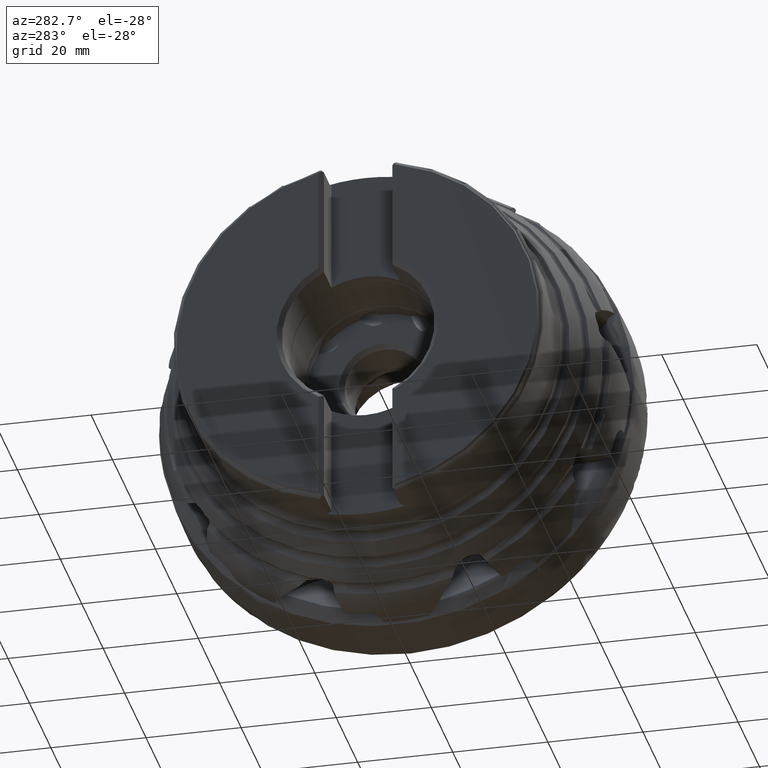
[diagram: clean part render]
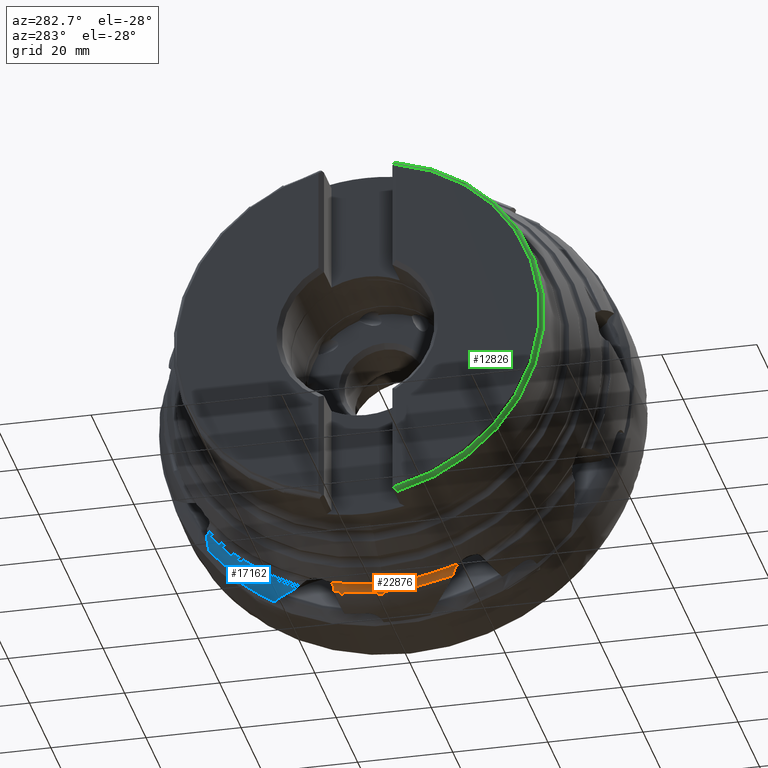
[diagram: same view with three faces highlighted in distinct colors, each labeled with its STEP entity id]
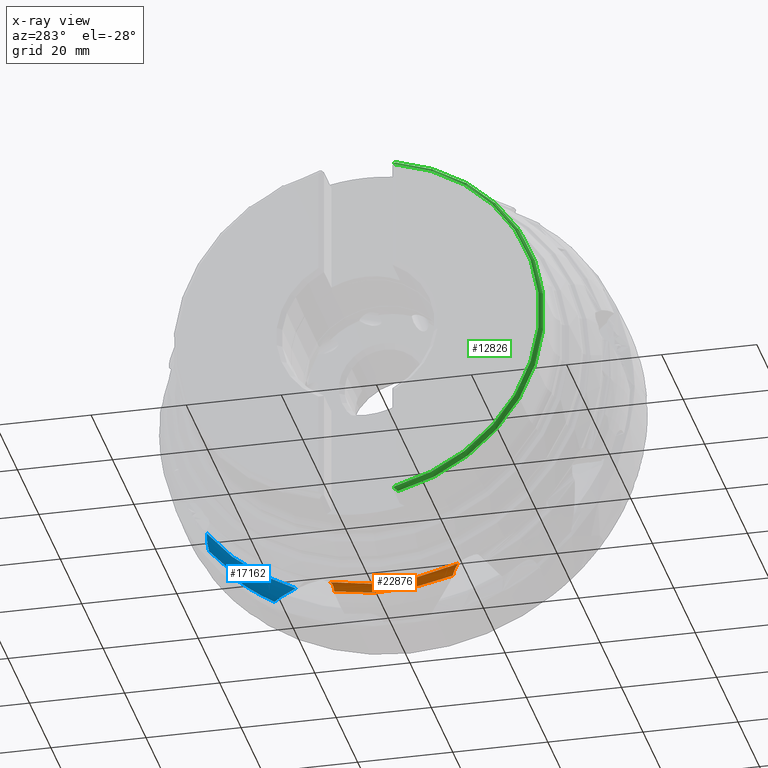
[diagram: x-ray of the same camera — body ghosted, the three highlighted faces saturated]
A machine part, auxiliary view with three faces highlighted in distinct colors.
The next image is the same camera in x-ray (body ghosted, the three faces saturated) — at least one of them is partly hidden behind the body in this view.
Their STEP definitions:

[orange] entity #22876 — the highlighted toroidal blend (fillet) surface has major radius 47.105 mm and minor (blend) radius 1.5 mm.
#441 = VERTEX_POINT ( 'NONE', #21181 ) ;
#443 = EDGE_CURVE ( 'NONE', #17654, #15442, #2719, .T. ) ;
#1075 = CARTESIAN_POINT ( 'NONE',  ( -21.51582110754798500, -13.89977677410916900, -44.78002831438774900 ) ) ;
#1111 = CARTESIAN_POINT ( 'NONE',  ( -22.33564965344870500, 11.25843396294422400, -44.34953595488018200 ) ) ;
#1184 = CARTESIAN_POINT ( 'NONE',  ( -22.66057488353391800, -15.03415632036761100, -43.08703075752679700 ) ) ;
#1265 = CARTESIAN_POINT ( 'NONE',  ( -22.99999999999967700, -15.34419721218875500, -42.94611373426072700 ) ) ;
#1285 = CARTESIAN_POINT ( 'NONE',  ( -21.81069910547086400, -14.22723440292342000, -43.92605100744162200 ) ) ;
#2122 = B_SPLINE_CURVE_WITH_KNOTS ( 'NONE', 3,
 ( #21018, #9943, #1184, #23495, #14463, #19110, #1285, #10030, #25349, #5881 ),
 .UNSPECIFIED., .F., .F.,
 ( 4, 2, 2, 2, 4 ),
 ( 0.0009234157491546617200, 0.001645728096951064100, 0.002368040444747466400, 0.003090352792543868800, 0.003812665140340271300 ),
 .UNSPECIFIED. ) ;
#2643 = ORIENTED_EDGE ( 'NONE', *, *, #26617, .T. ) ;
#2719 = CIRCLE ( 'NONE', #15937, 46.88768207332419300 ) ;
#3958 = VERTEX_POINT ( 'NONE', #1265 ) ;
#4576 = ORIENTED_EDGE ( 'NONE', *, *, #19837, .F. ) ;
#5046 = CARTESIAN_POINT ( 'NONE',  ( -21.56063662023743200, 11.07724096877326400, -45.24537445353392700 ) ) ;
#5881 = CARTESIAN_POINT ( 'NONE',  ( -21.51582110754798500, -13.89977677410916900, -44.78002831438774900 ) ) ;
#6120 = CIRCLE ( 'NONE', #27336, 45.60496763470674600 ) ;
#6443 = DIRECTION ( 'NONE',  ( -1.000000000000000000, -0.0000000000000000000, -0.0000000000000000000 ) ) ;
#7927 = ORIENTED_EDGE ( 'NONE', *, *, #22902, .F. ) ;
#7976 = DIRECTION ( 'NONE',  ( -1.000000000000000000, -0.0000000000000000000, -0.0000000000000000000 ) ) ;
#9466 = CARTESIAN_POINT ( 'NONE',  ( -21.90880405705434300, 11.13506702666466800, -44.71000905385877600 ) ) ;
#9634 = AXIS2_PLACEMENT_3D ( 'NONE', #19375, #25800, #28114 ) ;
#9665 = CARTESIAN_POINT ( 'NONE',  ( -22.81083888070073900, 11.49210745073596000, -44.13344851352644600 ) ) ;
#9943 = CARTESIAN_POINT ( 'NONE',  ( -22.82640610825496800, -15.18592008625700600, -43.00266449574584000 ) ) ;
#10030 = CARTESIAN_POINT ( 'NONE',  ( -21.61986758293511800, -14.02805730358257300, -44.32229453065287600 ) ) ;
#10573 = DIRECTION ( 'NONE',  ( 0.0000000000000000000, 0.0000000000000000000, 1.000000000000000000 ) ) ;
#11812 = CARTESIAN_POINT ( 'NONE',  ( -21.51582110754338800, 11.06979769821593800, -45.56220263693997900 ) ) ;
#11881 = CARTESIAN_POINT ( 'NONE',  ( -23.00000000000000000, 11.61721633614341800, -44.10049157959458200 ) ) ;
#12071 = CARTESIAN_POINT ( 'NONE',  ( -22.06908393690005000, 11.16819586511335200, -44.54537463102105500 ) ) ;
#12716 = CARTESIAN_POINT ( 'NONE',  ( -21.51582110755043700, 0.0000000000000000000, 0.0000000000000000000 ) ) ;
#13176 = CARTESIAN_POINT ( 'NONE',  ( -21.90880405705434300, 11.13506702666466800, -44.71000905385877600 ) ) ;
#14008 = CARTESIAN_POINT ( 'NONE',  ( -21.90880405705434300, 11.13506702666466800, -44.71000905385877600 ) ) ;
#14297 = CARTESIAN_POINT ( 'NONE',  ( -22.62012464712670500, 11.38469830025658400, -44.19683368919333300 ) ) ;
#14463 = CARTESIAN_POINT ( 'NONE',  ( -22.19585768210061300, -14.60155642904278400, -43.43931953317581900 ) ) ;
#14501 = EDGE_LOOP ( 'NONE', ( #7927, #2643, #4576, #15391, #23542 ) ) ;
#15391 = ORIENTED_EDGE ( 'NONE', *, *, #443, .T. ) ;
#15442 = VERTEX_POINT ( 'NONE', #1075 ) ;
#15937 = AXIS2_PLACEMENT_3D ( 'NONE', #12716, #7976, #10573 ) ;
#16154 = VERTEX_POINT ( 'NONE', #13176 ) ;
#17534 = FACE_OUTER_BOUND ( 'NONE', #14501, .T. ) ;
#17654 = VERTEX_POINT ( 'NONE', #11812 ) ;
#18334 = EDGE_CURVE ( 'NONE', #3958, #15442, #2122, .T. ) ;
#18435 = CARTESIAN_POINT ( 'NONE',  ( -21.51582110754338800, 11.06979769821593800, -45.56220263693997900 ) ) ;
#18754 = CARTESIAN_POINT ( 'NONE',  ( -22.24414753619992900, 11.22355297062157200, -44.40870032050983000 ) ) ;
#19110 = CARTESIAN_POINT ( 'NONE',  ( -21.93072197457457100, -14.34627035275065100, -43.74744405146734700 ) ) ;
#19375 = CARTESIAN_POINT ( 'NONE',  ( -23.00000000000000400, 0.0000000000000000000, 0.0000000000000000000 ) ) ;
#19837 = EDGE_CURVE ( 'NONE', #17654, #16154, #27853, .T. ) ;
#20651 = CARTESIAN_POINT ( 'NONE',  ( -21.70012392740822800, 11.10040798626725300, -44.94664559676633800 ) ) ;
#21018 = CARTESIAN_POINT ( 'NONE',  ( -22.99999999999967700, -15.34419721218875500, -42.94611373426072700 ) ) ;
#21181 = CARTESIAN_POINT ( 'NONE',  ( -23.00000000000000000, 11.61721633614341800, -44.10049157959458200 ) ) ;
#21286 = TOROIDAL_SURFACE ( 'NONE', #9634, 47.10496763470675300, 1.500000000000000900 ) ;
#21868 = DIRECTION ( 'NONE',  ( 0.0000000000000000000, 0.0000000000000000000, 1.000000000000000000 ) ) ;
#22876 = ADVANCED_FACE ( 'NONE', ( #17534 ), #21286, .F. ) ;
#22902 = EDGE_CURVE ( 'NONE', #441, #3958, #6120, .T. ) ;
#23495 = CARTESIAN_POINT ( 'NONE',  ( -22.34416044759226600, -14.74093870792264800, -43.30578482180905600 ) ) ;
#23542 = ORIENTED_EDGE ( 'NONE', *, *, #18334, .F. ) ;
#23977 = CARTESIAN_POINT ( 'NONE',  ( -23.00000000000000400, 0.0000000000000000000, 0.0000000000000000000 ) ) ;
#25349 = CARTESIAN_POINT ( 'NONE',  ( -21.54678460168371900, -13.94543422846600600, -44.54440411263782100 ) ) ;
#25800 = DIRECTION ( 'NONE',  ( -1.000000000000000000, -0.0000000000000000000, -0.0000000000000000000 ) ) ;
#26617 = EDGE_CURVE ( 'NONE', #441, #16154, #27535, .T. ) ;
#27269 = CARTESIAN_POINT ( 'NONE',  ( -21.98502064471712800, 11.14772560510831100, -44.62358189930733900 ) ) ;
#27336 = AXIS2_PLACEMENT_3D ( 'NONE', #23977, #6443, #21868 ) ;
#27535 = B_SPLINE_CURVE_WITH_KNOTS ( 'NONE', 3,
 ( #11881, #9665, #14297, #1111, #18754, #12071, #27269, #14008 ),
 .UNSPECIFIED., .F., .F.,
 ( 4, 2, 2, 4 ),
 ( 0.0008585425107273364100, 0.001541373833409434700, 0.001882789494750474000, 0.002224205156091513300 ),
 .UNSPECIFIED. ) ;
#27853 = B_SPLINE_CURVE_WITH_KNOTS ( 'NONE', 3,
 ( #18435, #5046, #20651, #9466 ),
 .UNSPECIFIED., .F., .F.,
 ( 4, 4 ),
 ( 0.001452436886330512300, 0.002402648115764293000 ),
 .UNSPECIFIED. ) ;
#28114 = DIRECTION ( 'NONE',  ( 0.0000000000000000000, 0.0000000000000000000, 1.000000000000000000 ) ) ;

[blue] entity #17162 — the highlighted toroidal blend (fillet) surface has major radius 34.1931 mm and minor (blend) radius 15 mm.
#194 = EDGE_CURVE ( 'NONE', #2169, #2273, #22314, .T. ) ;
#873 = CARTESIAN_POINT ( 'NONE',  ( -20.06851629440642200, 20.03212564769982500, -43.37850244684002400 ) ) ;
#951 = CARTESIAN_POINT ( 'NONE',  ( -14.61908927653692700, 33.77168705842830600, -35.72979860784494800 ) ) ;
#1098 = ORIENTED_EDGE ( 'NONE', *, *, #23233, .F. ) ;
#1106 = TOROIDAL_SURFACE ( 'NONE', #24964, 34.19310635530771900, 15.00000000000000000 ) ;
#1372 = CARTESIAN_POINT ( 'NONE',  ( -13.42999999999999800, 33.65084939973886000, -35.88000579258726200 ) ) ;
#1455 = EDGE_CURVE ( 'NONE', #11352, #14578, #14256, .T. ) ;
#2169 = VERTEX_POINT ( 'NONE', #12997 ) ;
#2273 = VERTEX_POINT ( 'NONE', #12902 ) ;
#2634 = CARTESIAN_POINT ( 'NONE',  ( -16.30089348324240100, 36.52052100933443800, -32.65307175872336400 ) ) ;
#2659 = EDGE_LOOP ( 'NONE', ( #1098, #10426, #10300, #25700, #12173, #18259, #18879 ) ) ;
#2724 = CARTESIAN_POINT ( 'NONE',  ( -13.42999999999999800, 33.65084939973886000, -35.88000579258726200 ) ) ;
#2995 = CARTESIAN_POINT ( 'NONE',  ( -17.90149804509585600, 22.33624526338709200, -43.16612926717800700 ) ) ;
#3278 = CARTESIAN_POINT ( 'NONE',  ( -14.14019099011469300, 25.14411547406044500, -42.29469238842884900 ) ) ;
#3777 = EDGE_CURVE ( 'NONE', #26001, #6042, #23984, .T. ) ;
#3886 = AXIS2_PLACEMENT_3D ( 'NONE', #6496, #10931, #15574 ) ;
#5140 = B_SPLINE_CURVE_WITH_KNOTS ( 'NONE', 3,
 ( #23497, #15063, #25719, #6066, #27938, #17100 ),
 .UNSPECIFIED., .F., .F.,
 ( 4, 2, 4 ),
 ( 0.002637427210874845300, 0.005083677743902557600, 0.007529928276930268600 ),
 .UNSPECIFIED. ) ;
#5193 = CARTESIAN_POINT ( 'NONE',  ( -17.01851337257914700, 23.11837604931843900, -43.00035264632818900 ) ) ;
#5255 = CARTESIAN_POINT ( 'NONE',  ( -14.32198842441332700, 33.73906915411254200, -35.78114861226772800 ) ) ;
#5400 = EDGE_CURVE ( 'NONE', #2169, #16261, #14417, .T. ) ;
#5502 = CARTESIAN_POINT ( 'NONE',  ( -14.02501451493576400, 33.71499761686371200, -35.82129464505990100 ) ) ;
#6042 = VERTEX_POINT ( 'NONE', #11405 ) ;
#6066 = CARTESIAN_POINT ( 'NONE',  ( -19.12437300937544300, 38.38523005301797000, -29.14210301038210500 ) ) ;
#6445 = DIRECTION ( 'NONE',  ( 1.000000000000000000, -0.0000000000000000000, -0.0000000000000000000 ) ) ;
#6496 = CARTESIAN_POINT ( 'NONE',  ( -13.43000000000000000, 0.0000000000000000000, 0.0000000000000000000 ) ) ;
#7384 = CARTESIAN_POINT ( 'NONE',  ( -16.40984149172750900, 35.18230861048051800, -34.02401186875478300 ) ) ;
#7482 = CARTESIAN_POINT ( 'NONE',  ( -14.90394424252396800, 33.82876609918608300, -35.64741440895257800 ) ) ;
#7575 = CARTESIAN_POINT ( 'NONE',  ( -15.04367248873465000, 33.86593583940489100, -35.59533838861393200 ) ) ;
#9272 = CARTESIAN_POINT ( 'NONE',  ( -16.19589839429762900, 37.58833553746767800, -31.44709236509577700 ) ) ;
#9509 = CARTESIAN_POINT ( 'NONE',  ( -15.76856399109646000, 34.19536222211807800, -35.16173710762846800 ) ) ;
#9546 = EDGE_CURVE ( 'NONE', #6042, #2273, #5140, .T. ) ;
#9606 = CARTESIAN_POINT ( 'NONE',  ( -15.66079238677288800, 34.12725333548810600, -35.24850749328088300 ) ) ;
#9813 = CARTESIAN_POINT ( 'NONE',  ( -16.71737239646170200, 23.37133300308810400, -42.93814740199894000 ) ) ;
#9914 = CARTESIAN_POINT ( 'NONE',  ( -16.09863998527804100, 23.85893140492651600, -42.80012812541675500 ) ) ;
#10300 = ORIENTED_EDGE ( 'NONE', *, *, #20516, .F. ) ;
#10426 = ORIENTED_EDGE ( 'NONE', *, *, #1455, .F. ) ;
#10931 = DIRECTION ( 'NONE',  ( 1.000000000000000000, -0.0000000000000000000, -0.0000000000000000000 ) ) ;
#11338 = AXIS2_PLACEMENT_3D ( 'NONE', #11669, #25059, #27153 ) ;
#11352 = VERTEX_POINT ( 'NONE', #2724 ) ;
#11405 = CARTESIAN_POINT ( 'NONE',  ( -16.02628478143207900, 38.59958693166851200, -30.19806430008538800 ) ) ;
#11591 = CARTESIAN_POINT ( 'NONE',  ( -13.42999999997699800, 25.46025162172489700, -42.08954820805774900 ) ) ;
#11669 = CARTESIAN_POINT ( 'NONE',  ( -20.57421417023958600, 0.0000000000000000000, 0.0000000000000000000 ) ) ;
#11713 = CARTESIAN_POINT ( 'NONE',  ( -16.41424971217802000, 35.28805759386155900, -33.91312923740101600 ) ) ;
#11807 = CARTESIAN_POINT ( 'NONE',  ( -15.30707305374937000, 33.95561898413226500, -35.47330770546446400 ) ) ;
#12022 = CARTESIAN_POINT ( 'NONE',  ( -15.78098732494578900, 24.09347539452591700, -42.72425905987066800 ) ) ;
#12173 = ORIENTED_EDGE ( 'NONE', *, *, #194, .T. ) ;
#12902 = CARTESIAN_POINT ( 'NONE',  ( -20.57421417023958600, 38.08607209832639000, -28.41096268129765400 ) ) ;
#12997 = CARTESIAN_POINT ( 'NONE',  ( -20.57421417023958600, 19.41181000658646400, -43.36949758326920800 ) ) ;
#13610 = CARTESIAN_POINT ( 'NONE',  ( -16.40456199939411500, 35.39338706448598500, -33.80544150767271800 ) ) ;
#13939 = CARTESIAN_POINT ( 'NONE',  ( -16.24782170684241600, 34.68691382739630300, -34.57014326545817100 ) ) ;
#14139 = CARTESIAN_POINT ( 'NONE',  ( -20.57421417023958600, 19.41181000658646400, -43.36949758326920800 ) ) ;
#14256 = B_SPLINE_CURVE_WITH_KNOTS ( 'NONE', 3,
 ( #1372, #19004, #5502, #21013 ),
 .UNSPECIFIED., .F., .F.,
 ( 4, 4 ),
 ( 2.018693771405979500E-007, 0.0009019366383959258500 ),
 .UNSPECIFIED. ) ;
#14417 = B_SPLINE_CURVE_WITH_KNOTS ( 'NONE', 3,
 ( #14139, #873, #20797, #16283, #2995, #5193, #9813, #9914, #12022, #16581, #3278, #20897 ),
 .UNSPECIFIED., .F., .F.,
 ( 4, 2, 2, 2, 2, 4 ),
 ( 3.131808452278737200E-007, 0.002375926398174585300, 0.004751539615503942900, 0.005939346224168624500, 0.007127152832833305200, 0.009502766050162675400 ),
 .UNSPECIFIED. ) ;
#14578 = VERTEX_POINT ( 'NONE', #5255 ) ;
#15063 = CARTESIAN_POINT ( 'NONE',  ( -16.81592406513794900, 38.60007342673110700, -29.99461283455838500 ) ) ;
#15574 = DIRECTION ( 'NONE',  ( 0.0000000000000000000, 0.0000000000000000000, -1.000000000000000000 ) ) ;
#16151 = CIRCLE ( 'NONE', #3886, 49.19100000000000300 ) ;
#16261 = VERTEX_POINT ( 'NONE', #11591 ) ;
#16283 = CARTESIAN_POINT ( 'NONE',  ( -18.46313936224841600, 21.78405532054673400, -43.24891012687064100 ) ) ;
#16581 = CARTESIAN_POINT ( 'NONE',  ( -14.81165738123779200, 24.75501615911085900, -42.48015206937998300 ) ) ;
#16633 = FACE_OUTER_BOUND ( 'NONE', #2659, .T. ) ;
#17100 = CARTESIAN_POINT ( 'NONE',  ( -20.57421417023958600, 38.08607209832639000, -28.41096268129765400 ) ) ;
#17162 = ADVANCED_FACE ( 'NONE', ( #16633 ), #1106, .T. ) ;
#18259 = ORIENTED_EDGE ( 'NONE', *, *, #9546, .F. ) ;
#18384 = CARTESIAN_POINT ( 'NONE',  ( -15.95925491313730400, 34.34289988372618300, -34.97835820728992900 ) ) ;
#18879 = ORIENTED_EDGE ( 'NONE', *, *, #3777, .F. ) ;
#19004 = CARTESIAN_POINT ( 'NONE',  ( -13.72779467251666800, 33.68506451302287300, -35.85475915420660400 ) ) ;
#19178 = CARTESIAN_POINT ( 'NONE',  ( -16.18739048095313700, 34.59431121860914300, -34.67756311228411900 ) ) ;
#20516 = EDGE_CURVE ( 'NONE', #16261, #11352, #16151, .T. ) ;
#20797 = CARTESIAN_POINT ( 'NONE',  ( -19.54670605147791200, 20.63205419696651100, -43.35510220672077300 ) ) ;
#20897 = CARTESIAN_POINT ( 'NONE',  ( -13.42999999997699800, 25.46025162172489700, -42.08954820805774900 ) ) ;
#21013 = CARTESIAN_POINT ( 'NONE',  ( -14.32198842441332700, 33.73906915411254200, -35.78114861226772800 ) ) ;
#21368 = CARTESIAN_POINT ( 'NONE',  ( -16.37242284919295400, 34.97662076670307800, -34.24524810531630700 ) ) ;
#21483 = CARTESIAN_POINT ( 'NONE',  ( -13.68136869832715500, 0.0000000000000000000, 0.0000000000000000000 ) ) ;
#21717 = B_SPLINE_CURVE_WITH_KNOTS ( 'NONE', 3,
 ( #23075, #27111, #951, #7482, #7575, #11807, #22872, #9606, #9509, #18384, #24919, #19178, #13939, #22783, #21368, #7384, #11713, #22984 ),
 .UNSPECIFIED., .F., .F.,
 ( 4, 2, 2, 2, 2, 2, 2, 2, 4 ),
 ( 0.0008927674828013235900, 0.001345426570475035100, 0.001798085658148746500, 0.002250744745822457900, 0.002703403833496169300, 0.003156062921169881100, 0.003608722008843592500, 0.004061381096517303900, 0.004514040184191015300 ),
 .UNSPECIFIED. ) ;
#22314 = CIRCLE ( 'NONE', #11338, 47.51559415978088900 ) ;
#22530 = CARTESIAN_POINT ( 'NONE',  ( -16.40456199939411500, 35.39338706448598500, -33.80544150767271800 ) ) ;
#22783 = CARTESIAN_POINT ( 'NONE',  ( -16.33989226884160600, 34.87763534734140300, -34.35451427887823400 ) ) ;
#22872 = CARTESIAN_POINT ( 'NONE',  ( -15.43045881469417000, 34.00778311799421500, -35.40380150060173000 ) ) ;
#22984 = CARTESIAN_POINT ( 'NONE',  ( -16.40456199939411500, 35.39338706448598500, -33.80544150767271800 ) ) ;
#23075 = CARTESIAN_POINT ( 'NONE',  ( -14.32198842441332700, 33.73906915411254200, -35.78114861226772800 ) ) ;
#23233 = EDGE_CURVE ( 'NONE', #14578, #26001, #21717, .T. ) ;
#23497 = CARTESIAN_POINT ( 'NONE',  ( -16.02628478143207900, 38.59958693166851200, -30.19806430008538800 ) ) ;
#23984 = B_SPLINE_CURVE_WITH_KNOTS ( 'NONE', 3,
 ( #22530, #2634, #9272, #24657 ),
 .UNSPECIFIED., .F., .F.,
 ( 4, 4 ),
 ( 0.0003267637111145342200, 0.005167793950098564400 ),
 .UNSPECIFIED. ) ;
#24657 = CARTESIAN_POINT ( 'NONE',  ( -16.02628478143207900, 38.59958693166851200, -30.19806430008538800 ) ) ;
#24919 = CARTESIAN_POINT ( 'NONE',  ( -16.04304724108727600, 34.42254437841614800, -34.88142728248462300 ) ) ;
#24964 = AXIS2_PLACEMENT_3D ( 'NONE', #21483, #6445, #28309 ) ;
#25059 = DIRECTION ( 'NONE',  ( 1.000000000000000000, -0.0000000000000000000, -0.0000000000000000000 ) ) ;
#25700 = ORIENTED_EDGE ( 'NONE', *, *, #5400, .F. ) ;
#25719 = CARTESIAN_POINT ( 'NONE',  ( -17.59360815461989000, 38.55779508904289100, -29.74328527338738200 ) ) ;
#26001 = VERTEX_POINT ( 'NONE', #13610 ) ;
#27111 = CARTESIAN_POINT ( 'NONE',  ( -14.47261961714036900, 33.75127872623605900, -35.76078572984019400 ) ) ;
#27153 = DIRECTION ( 'NONE',  ( 0.0000000000000000000, 0.0000000000000000000, -1.000000000000000000 ) ) ;
#27938 = CARTESIAN_POINT ( 'NONE',  ( -19.86318112406840100, 38.25648340684902100, -28.79777151552041300 ) ) ;
#28309 = DIRECTION ( 'NONE',  ( 0.0000000000000000000, 0.0000000000000000000, -1.000000000000000000 ) ) ;

[green] entity #12826 — the highlighted toroidal blend (fillet) surface has major radius 38 mm and minor (blend) radius 1 mm.
#325 = EDGE_CURVE ( 'NONE', #571, #3851, #7001, .T. ) ;
#462 = CARTESIAN_POINT ( 'NONE',  ( -48.62566441285628100, -7.575664412856316000, -37.72988800895824800 ) ) ;
#571 = VERTEX_POINT ( 'NONE', #26457 ) ;
#622 = ORIENTED_EDGE ( 'NONE', *, *, #19070, .F. ) ;
#781 = CARTESIAN_POINT ( 'NONE',  ( -48.62566441285628100, -7.575664412856313300, 37.72988800895825500 ) ) ;
#1154 = CARTESIAN_POINT ( 'NONE',  ( -48.67131200690072000, -7.621312006900747200, 37.63629918073278400 ) ) ;
#1393 = B_SPLINE_CURVE_WITH_KNOTS ( 'NONE', 3,
 ( #14587, #5532, #20956, #7644 ),
 .UNSPECIFIED., .F., .F.,
 ( 4, 4 ),
 ( 0.0007468856013246440200, 0.001083771706065190600 ),
 .UNSPECIFIED. ) ;
#2663 = VERTEX_POINT ( 'NONE', #23993 ) ;
#3379 = CARTESIAN_POINT ( 'NONE',  ( -48.62566441285628100, -7.575664412856313300, 37.72988800895825500 ) ) ;
#3851 = VERTEX_POINT ( 'NONE', #781 ) ;
#3870 = CARTESIAN_POINT ( 'NONE',  ( -47.75000000000000000, -8.168213455382025100, -38.13502706105392500 ) ) ;
#4535 = CARTESIAN_POINT ( 'NONE',  ( -48.54359111119296700, -7.726383029734689600, -37.83293770306458000 ) ) ;
#4745 = VERTEX_POINT ( 'NONE', #27859 ) ;
#4823 = CARTESIAN_POINT ( 'NONE',  ( -47.75000000000000000, 0.0000000000000000000, 0.0000000000000000000 ) ) ;
#5295 = B_SPLINE_CURVE_WITH_KNOTS ( 'NONE', 3,
 ( #10825, #12964, #13065, #15480, #8818, #17798 ),
 .UNSPECIFIED., .F., .F.,
 ( 4, 2, 4 ),
 ( 0.0000000000000000000, 0.0005977454181976173800, 0.001195490836395234800 ),
 .UNSPECIFIED. ) ;
#5532 = CARTESIAN_POINT ( 'NONE',  ( -48.67086891472552400, -7.620868914725557300, -37.63720762899473700 ) ) ;
#6023 = FACE_OUTER_BOUND ( 'NONE', #17843, .T. ) ;
#6713 = CARTESIAN_POINT ( 'NONE',  ( -48.43477444809111200, -7.863460168360395700, -37.92666041295216700 ) ) ;
#7001 = B_SPLINE_CURVE_WITH_KNOTS ( 'NONE', 3,
 ( #16380, #7500, #1154, #3379 ),
 .UNSPECIFIED., .F., .F.,
 ( 4, 4 ),
 ( 0.001379597850589676200, 0.001716929802340874800 ),
 .UNSPECIFIED. ) ;
#7002 = DIRECTION ( 'NONE',  ( 0.0000000000000000000, 0.0000000000000000000, -1.000000000000000000 ) ) ;
#7500 = CARTESIAN_POINT ( 'NONE',  ( -48.70714776707191600, -7.657147767071954500, 37.53515461502401300 ) ) ;
#7644 = CARTESIAN_POINT ( 'NONE',  ( -48.72876197310684200, -7.678761973106873900, -37.42537427415211200 ) ) ;
#8323 = ORIENTED_EDGE ( 'NONE', *, *, #16013, .F. ) ;
#8818 = CARTESIAN_POINT ( 'NONE',  ( -48.55169255572757700, -7.730335474322156000, 37.83564007795460800 ) ) ;
#9889 = DIRECTION ( 'NONE',  ( 1.000000000000000000, -0.0000000000000000000, -0.0000000000000000000 ) ) ;
#10825 = CARTESIAN_POINT ( 'NONE',  ( -47.75000000000000000, -8.168213455382023400, 38.13502706105392500 ) ) ;
#11311 = AXIS2_PLACEMENT_3D ( 'NONE', #18877, #9889, #12099 ) ;
#12099 = DIRECTION ( 'NONE',  ( 0.0000000000000000000, 0.0000000000000000000, -1.000000000000000000 ) ) ;
#12826 = ADVANCED_FACE ( 'NONE', ( #6023 ), #14675, .T. ) ;
#12964 = CARTESIAN_POINT ( 'NONE',  ( -47.95267689284921200, -8.168213455382026900, 38.13502706105392500 ) ) ;
#13065 = CARTESIAN_POINT ( 'NONE',  ( -48.14534915381371900, -8.094886408330509700, 38.08489171662945000 ) ) ;
#13227 = EDGE_CURVE ( 'NONE', #22837, #21988, #13927, .T. ) ;
#13228 = CARTESIAN_POINT ( 'NONE',  ( -48.72876197310684900, 0.0000000000000000000, 0.0000000000000000000 ) ) ;
#13477 = EDGE_CURVE ( 'NONE', #4745, #3851, #5295, .T. ) ;
#13916 = CARTESIAN_POINT ( 'NONE',  ( -47.95344134507421100, -8.168213455382025100, -38.13502706105392500 ) ) ;
#13927 = B_SPLINE_CURVE_WITH_KNOTS ( 'NONE', 3,
 ( #462, #17742, #4535, #6713, #27002, #27088, #13916, #20759 ),
 .UNSPECIFIED., .F., .F.,
 ( 4, 2, 2, 4 ),
 ( 0.0000000000000000000, 0.0002976933538340569700, 0.0005953867076681139400, 0.001190773415336212500 ),
 .UNSPECIFIED. ) ;
#14587 = CARTESIAN_POINT ( 'NONE',  ( -48.62566441285628100, -7.575664412856316000, -37.72988800895824800 ) ) ;
#14588 = CIRCLE ( 'NONE', #11311, 38.99999999999999300 ) ;
#14675 = TOROIDAL_SURFACE ( 'NONE', #28318, 37.99999999999999300, 1.000000000000002200 ) ;
#15480 = CARTESIAN_POINT ( 'NONE',  ( -48.44342365490059200, -7.873730037608218900, 37.93368215257810800 ) ) ;
#15709 = AXIS2_PLACEMENT_3D ( 'NONE', #13228, #24094, #28325 ) ;
#16013 = EDGE_CURVE ( 'NONE', #4745, #21988, #14588, .T. ) ;
#16380 = CARTESIAN_POINT ( 'NONE',  ( -48.72876197310684200, -7.678761973106873900, 37.42537427415211200 ) ) ;
#17742 = CARTESIAN_POINT ( 'NONE',  ( -48.58864388107298300, -7.653072297005935300, -37.78281351310797500 ) ) ;
#17798 = CARTESIAN_POINT ( 'NONE',  ( -48.62566441285628100, -7.575664412856313300, 37.72988800895825500 ) ) ;
#17843 = EDGE_LOOP ( 'NONE', ( #622, #23047, #8323, #21295, #22430, #27009 ) ) ;
#18877 = CARTESIAN_POINT ( 'NONE',  ( -47.75000000000000000, 0.0000000000000000000, 0.0000000000000000000 ) ) ;
#19070 = EDGE_CURVE ( 'NONE', #22837, #2663, #1393, .T. ) ;
#19612 = CIRCLE ( 'NONE', #15709, 38.20499999999999100 ) ;
#20149 = EDGE_CURVE ( 'NONE', #571, #2663, #19612, .T. ) ;
#20335 = DIRECTION ( 'NONE',  ( 1.000000000000000000, -0.0000000000000000000, -0.0000000000000000000 ) ) ;
#20759 = CARTESIAN_POINT ( 'NONE',  ( -47.75000000000000000, -8.168213455382025100, -38.13502706105392500 ) ) ;
#20956 = CARTESIAN_POINT ( 'NONE',  ( -48.70736559160017300, -7.657365591600209200, -37.53404826622166700 ) ) ;
#21295 = ORIENTED_EDGE ( 'NONE', *, *, #13477, .T. ) ;
#21988 = VERTEX_POINT ( 'NONE', #3870 ) ;
#22430 = ORIENTED_EDGE ( 'NONE', *, *, #325, .F. ) ;
#22837 = VERTEX_POINT ( 'NONE', #28025 ) ;
#23047 = ORIENTED_EDGE ( 'NONE', *, *, #13227, .T. ) ;
#23993 = CARTESIAN_POINT ( 'NONE',  ( -48.72876197310684200, -7.678761973106873900, -37.42537427415211200 ) ) ;
#24094 = DIRECTION ( 'NONE',  ( 1.000000000000000000, -0.0000000000000000000, -0.0000000000000000000 ) ) ;
#26457 = CARTESIAN_POINT ( 'NONE',  ( -48.72876197310684200, -7.678761973106873900, 37.42537427415211200 ) ) ;
#27002 = CARTESIAN_POINT ( 'NONE',  ( -48.36982590211013600, -7.928206977193801700, -37.97092925632955500 ) ) ;
#27009 = ORIENTED_EDGE ( 'NONE', *, *, #20149, .T. ) ;
#27088 = CARTESIAN_POINT ( 'NONE',  ( -48.14615133912148100, -8.094546779027474800, -38.08465950446804300 ) ) ;
#27859 = CARTESIAN_POINT ( 'NONE',  ( -47.75000000000000000, -8.168213455382023400, 38.13502706105392500 ) ) ;
#28025 = CARTESIAN_POINT ( 'NONE',  ( -48.62566441285628100, -7.575664412856316000, -37.72988800895824800 ) ) ;
#28318 = AXIS2_PLACEMENT_3D ( 'NONE', #4823, #20335, #7002 ) ;
#28325 = DIRECTION ( 'NONE',  ( 0.0000000000000000000, 0.0000000000000000000, -1.000000000000000000 ) ) ;